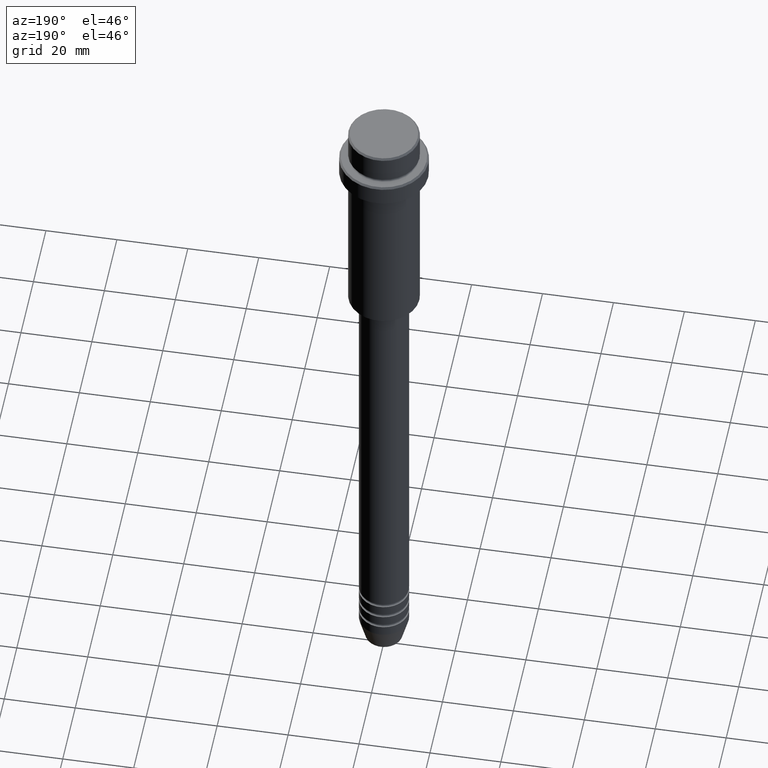
[diagram: clean part render]
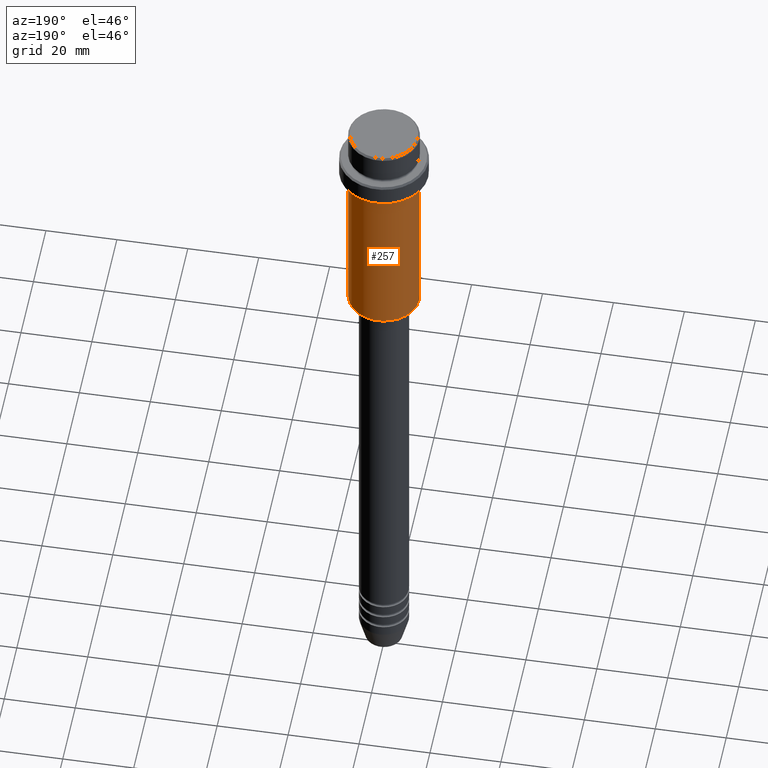
[diagram: same view with one face highlighted and labeled with its STEP entity id]
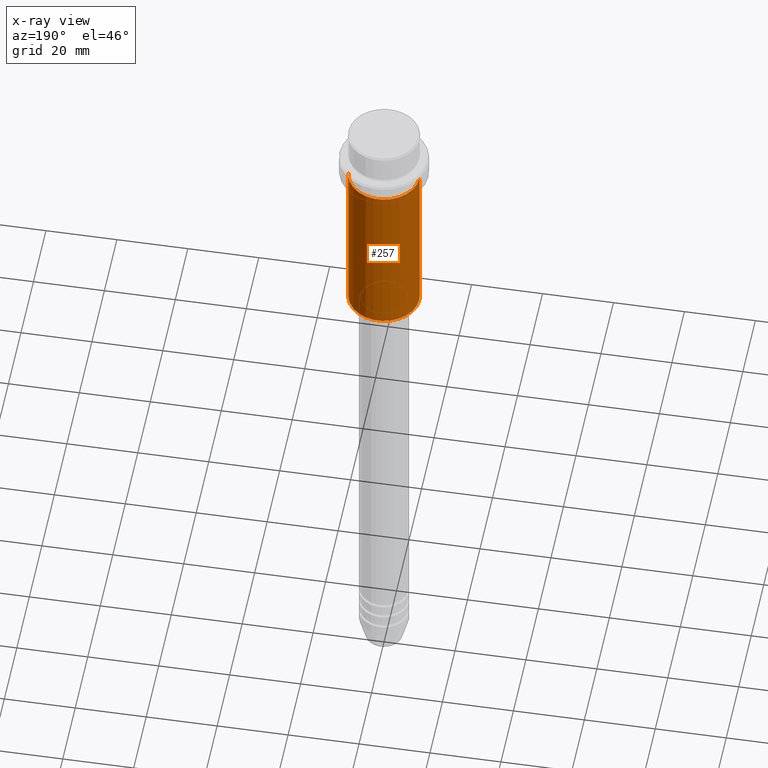
[diagram: x-ray of the same camera — body ghosted, the highlighted face saturated]
A machine part, auxiliary view. The second image highlights one B-rep face of the part: STEP entity #257.
The next image is the same camera in x-ray: the body ghosted, the highlighted face saturated — about 0% of this face is hidden behind the body in this view.
In plain terms, the highlighted cylindrical surface (edge-blend (fillet) strip) has radius 10 mm, axis along (-0, -0, 1).
Its self-contained STEP definition (entity closure, byte-faithful):
#8 = FACE_OUTER_BOUND ( 'NONE', #1080, .T. ) ;
#13 = DIRECTION ( 'NONE',  ( -0.000000000000000000, -0.000000000000000000, 1.000000000000000000 ) ) ;
#31 = EDGE_CURVE ( 'NONE', #196, #267, #80, .T. ) ;
#77 = VERTEX_POINT ( 'NONE', #843 ) ;
#80 = LINE ( 'NONE', #961, #804 ) ;
#93 = DIRECTION ( 'NONE',  ( -0.000000000000000000, -0.000000000000000000, 1.000000000000000000 ) ) ;
#115 = DIRECTION ( 'NONE',  ( -0.000000000000000000, -0.000000000000000000, 1.000000000000000000 ) ) ;
#144 = EDGE_CURVE ( 'NONE', #1096, #267, #737, .T. ) ;
#159 = AXIS2_PLACEMENT_3D ( 'NONE', #239, #681, #355 ) ;
#190 = ORIENTED_EDGE ( 'NONE', *, *, #1242, .F. ) ;
#196 = VERTEX_POINT ( 'NONE', #673 ) ;
#199 = AXIS2_PLACEMENT_3D ( 'NONE', #1094, #13, #892 ) ;
#227 = VECTOR ( 'NONE', #1336, 1000.000000000000000 ) ;
#239 = CARTESIAN_POINT ( 'NONE',  ( 0.000000000000000000, 0.000000000000000000, -64.50000000000000000 ) ) ;
#257 = ADVANCED_FACE ( 'NONE', ( #8 ), #331, .T. ) ;
#263 = CARTESIAN_POINT ( 'NONE',  ( -9.999999999999998224, 1.224646799147353059E-15, -16.00000000000000000 ) ) ;
#267 = VERTEX_POINT ( 'NONE', #263 ) ;
#320 = CIRCLE ( 'NONE', #159, 9.999999999999998224 ) ;
#331 = CYLINDRICAL_SURFACE ( 'NONE', #669, 9.999999999999998224 ) ;
#355 = DIRECTION ( 'NONE',  ( -1.000000000000000000, 0.000000000000000000, 0.000000000000000000 ) ) ;
#659 = CARTESIAN_POINT ( 'NONE',  ( 9.999999999999998224, 0.000000000000000000, -16.00000000000000000 ) ) ;
#669 = AXIS2_PLACEMENT_3D ( 'NONE', #1101, #115, #1321 ) ;
#673 = CARTESIAN_POINT ( 'NONE',  ( -9.999999999999998224, 1.224646799147353059E-15, -64.50000000000000000 ) ) ;
#676 = CARTESIAN_POINT ( 'NONE',  ( 9.999999999999998224, 0.000000000000000000, 0.000000000000000000 ) ) ;
#681 = DIRECTION ( 'NONE',  ( -0.000000000000000000, -0.000000000000000000, 1.000000000000000000 ) ) ;
#716 = ORIENTED_EDGE ( 'NONE', *, *, #31, .T. ) ;
#718 = ORIENTED_EDGE ( 'NONE', *, *, #1245, .T. ) ;
#737 = CIRCLE ( 'NONE', #199, 9.999999999999998224 ) ;
#804 = VECTOR ( 'NONE', #93, 1000.000000000000000 ) ;
#843 = CARTESIAN_POINT ( 'NONE',  ( 9.999999999999998224, 0.000000000000000000, -64.50000000000000000 ) ) ;
#845 = ORIENTED_EDGE ( 'NONE', *, *, #144, .F. ) ;
#892 = DIRECTION ( 'NONE',  ( 1.000000000000000000, 0.000000000000000000, 0.000000000000000000 ) ) ;
#961 = CARTESIAN_POINT ( 'NONE',  ( -9.999999999999998224, 1.224646799147353059E-15, 0.000000000000000000 ) ) ;
#1080 = EDGE_LOOP ( 'NONE', ( #718, #716, #845, #190 ) ) ;
#1094 = CARTESIAN_POINT ( 'NONE',  ( 0.000000000000000000, 0.000000000000000000, -16.00000000000000000 ) ) ;
#1096 = VERTEX_POINT ( 'NONE', #659 ) ;
#1101 = CARTESIAN_POINT ( 'NONE',  ( 0.000000000000000000, 0.000000000000000000, 0.000000000000000000 ) ) ;
#1115 = LINE ( 'NONE', #676, #227 ) ;
#1242 = EDGE_CURVE ( 'NONE', #77, #1096, #1115, .T. ) ;
#1245 = EDGE_CURVE ( 'NONE', #77, #196, #320, .T. ) ;
#1321 = DIRECTION ( 'NONE',  ( 1.000000000000000000, 0.000000000000000000, 0.000000000000000000 ) ) ;
#1336 = DIRECTION ( 'NONE',  ( -0.000000000000000000, -0.000000000000000000, 1.000000000000000000 ) ) ;